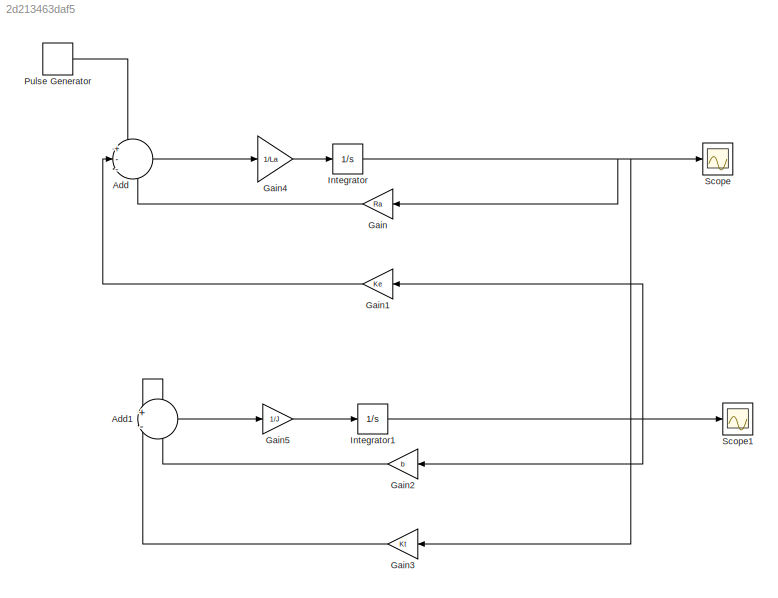
MODEL slx_2d213463daf5
KIND model
CONFIG AbsTol = auto
CONFIG EnableMultiTasking = off
CONFIG FixedStep = auto
CONFIG MaxStep = auto
CONFIG MinStep = auto
CONFIG RelTol = 1e-3
CONFIG SampleTimeConstraint = Unconstrained
CONFIG SolverName = VariableStepAuto
CONFIG StartTime = 0.0
CONFIG StopTime = 10.0
BLOCK [Sum] Add
  Inputs = +--
BLOCK [Sum] Add1
  Inputs = +-
BLOCK [Gain] Gain
  Gain = Ra
  NameLocation = top
BLOCK [Gain] Gain1
  Gain = Ke
  NameLocation = top
BLOCK [Gain] Gain2
  Gain = b
  NameLocation = top
BLOCK [Gain] Gain3
  Gain = Kt
  NameLocation = top
BLOCK [Gain] Gain4
  Gain = 1/La
BLOCK [Gain] Gain5
  Gain = 1/J
BLOCK [Integrator] Integrator
BLOCK [Integrator] Integrator1
BLOCK [DiscretePulseGenerator] Pulse Generator
  Amplitude = 24
  Period = 1/20000
  PulseType = Time based
  PulseWidth = 25
BLOCK [Scope] Scope
  Floating = off
  NumInputPorts = 1
  ScopeSpecificationString = Simulink.scopes.TimeScopeBlockCfg('CurrentConfiguration', extmgr.ConfigurationSet(extmgr.Configuration('Core','General UI',true),extmgr.Configuration('Core','Source UI',true),extmgr.Configuration('Sources','WiredSimulink',true),extmgr.Configuration('Visuals','Time Domain',true,'SerializedDisplays',{struct('MinYLimReal','-0.37427','MaxYLimReal','3.36839','YLabelReal','','MinYLimMag','0.00000','MaxY...<+1349ch>
BLOCK [Scope] Scope1
  Floating = off
  NumInputPorts = 1
  ScopeSpecificationString = Simulink.scopes.TimeScopeBlockCfg('CurrentConfiguration', extmgr.ConfigurationSet(extmgr.Configuration('Core','General UI',true),extmgr.Configuration('Core','Source UI',true),extmgr.Configuration('Sources','WiredSimulink',true,'DataLoggingVariableName','ScopeData1'),extmgr.Configuration('Visuals','Time Domain',true,'SerializedDisplays',{struct('MinYLimReal','-2.99999','MaxYLimReal','26.9999','YLab...<+1399ch>
LINE Add1:1 -> Gain5:1
LINE Add:1 -> Gain4:1
LINE Gain1:1 -> Add:2
LINE Gain2:1 -> Add1:2
LINE Gain3:1 -> Add1:1
LINE Gain4:1 -> Integrator:1
LINE Gain5:1 -> Integrator1:1
LINE Gain:1 -> Add:3
NET Integrator1:1 -> Gain1:1, Gain2:1, Scope1:1
NET Integrator:1 -> Gain3:1, Gain:1, Scope:1
LINE Pulse Generator:1 -> Add:1
note: NET lines group one-source signal fan-out (src -> all destinations, sorted); 1:1 wires keep LINE
